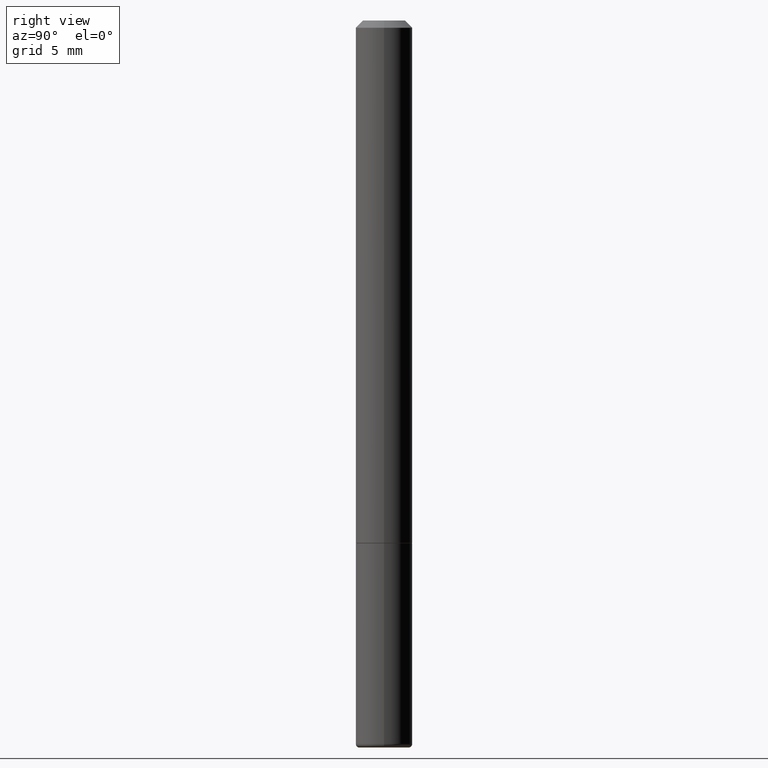
[diagram: clean part render]
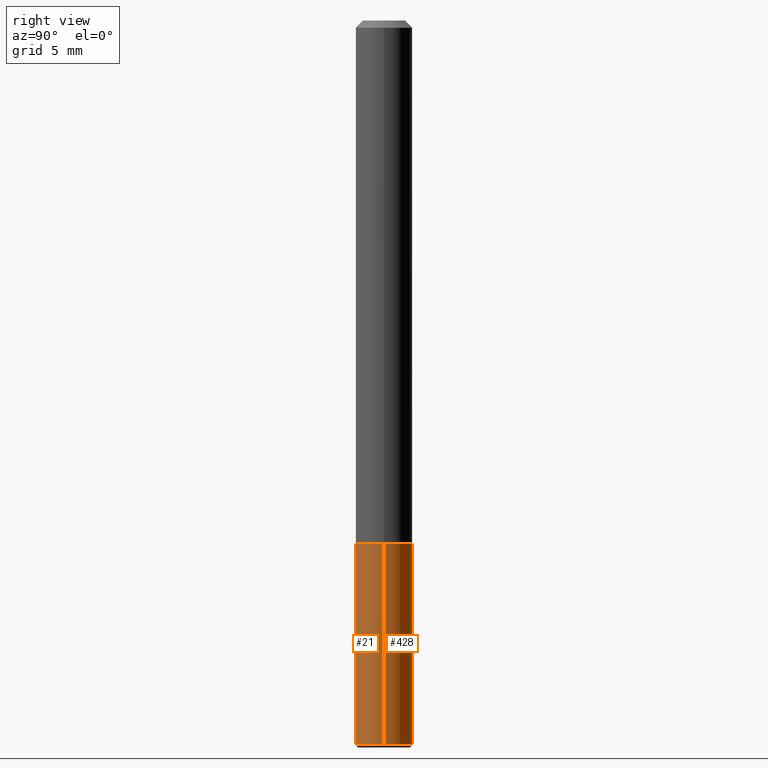
[diagram: same view with one multi-face feature highlighted, each face labeled with its STEP entity id]
A machine part, right view. The highlighted faces form ONE feature: a constant-radius fillet chain: 2 tangent blend faces with common blend radius 1.9837 mm. The faces share edges in the B-rep.
Their STEP definitions:
[1] entity #428 (Cylinder):
#4 = CARTESIAN_POINT ( 'NONE',  ( 4.866482924308422769E-29, -6.948047864297861094E-15, -1.990000000000000435 ) ) ;
#12 = ORIENTED_EDGE ( 'NONE', *, *, #276, .F. ) ;
#15 = VERTEX_POINT ( 'NONE', #104 ) ;
#31 = VECTOR ( 'NONE', #344, 39.37007874015748143 ) ;
#32 = FACE_OUTER_BOUND ( 'NONE', #384, .T. ) ;
#67 = AXIS2_PLACEMENT_3D ( 'NONE', #4, #68, #208 ) ;
#68 = DIRECTION ( 'NONE',  ( -2.445468806185136597E-29, 3.491481338843145583E-15, 1.000000000000000000 ) ) ;
#72 = DIRECTION ( 'NONE',  ( -2.445468806185136877E-29, 3.491481338843145188E-15, 1.000000000000000000 ) ) ;
#87 = CARTESIAN_POINT ( 'NONE',  ( -0.07810000000000000275, -5.429465138148513811E-15, -1.437999999999999723 ) ) ;
#102 = VERTEX_POINT ( 'NONE', #87 ) ;
#104 = CARTESIAN_POINT ( 'NONE',  ( 0.07810000000000000275, -5.566119550383739704E-15, -1.437999999999999723 ) ) ;
#107 = CARTESIAN_POINT ( 'NONE',  ( -0.07810000000000004439, 5.549338766286385606E-16, -3.841688305489084077E-30 ) ) ;
#113 = EDGE_CURVE ( 'NONE', #15, #102, #146, .T. ) ;
#116 = AXIS2_PLACEMENT_3D ( 'NONE', #197, #395, #263 ) ;
#128 = CARTESIAN_POINT ( 'NONE',  ( -0.07810000000000009990, -6.393113987669221646E-15, -1.990000000000000435 ) ) ;
#146 = CIRCLE ( 'NONE', #184, 0.07810000000000000275 ) ;
#148 = VERTEX_POINT ( 'NONE', #128 ) ;
#150 = ORIENTED_EDGE ( 'NONE', *, *, #113, .F. ) ;
#166 = CYLINDRICAL_SURFACE ( 'NONE', #116, 0.07810000000000004439 ) ;
#184 = AXIS2_PLACEMENT_3D ( 'NONE', #322, #187, #323 ) ;
#187 = DIRECTION ( 'NONE',  ( -2.445468806185136597E-29, 3.491481338843145583E-15, 1.000000000000000000 ) ) ;
#197 = CARTESIAN_POINT ( 'NONE',  ( 0.000000000000000000, 0.000000000000000000, 0.000000000000000000 ) ) ;
#206 = LINE ( 'NONE', #107, #31 ) ;
#208 = DIRECTION ( 'NONE',  ( 1.000000000000000000, -6.982962677686270655E-15, 0.000000000000000000 ) ) ;
#249 = VECTOR ( 'NONE', #72, 39.37007874015748143 ) ;
#250 = EDGE_CURVE ( 'NONE', #325, #148, #388, .T. ) ;
#251 = EDGE_CURVE ( 'NONE', #148, #102, #206, .T. ) ;
#263 = DIRECTION ( 'NONE',  ( 1.000000000000000000, -6.982962677686266711E-15, 4.876176775795936353E-29 ) ) ;
#276 = EDGE_CURVE ( 'NONE', #325, #15, #369, .T. ) ;
#300 = CARTESIAN_POINT ( 'NONE',  ( 0.07810000000000004439, -5.453693851272977322E-16, 3.808294061896628505E-30 ) ) ;
#322 = CARTESIAN_POINT ( 'NONE',  ( 3.516584143294225538E-29, -5.020750165256442268E-15, -1.437999999999999723 ) ) ;
#323 = DIRECTION ( 'NONE',  ( 1.000000000000000000, -6.982962677686266711E-15, 0.000000000000000000 ) ) ;
#325 = VERTEX_POINT ( 'NONE', #408 ) ;
#344 = DIRECTION ( 'NONE',  ( -2.445468806185136877E-29, 3.491481338843145188E-15, 1.000000000000000000 ) ) ;
#350 = ORIENTED_EDGE ( 'NONE', *, *, #251, .T. ) ;
#369 = LINE ( 'NONE', #300, #249 ) ;
#384 = EDGE_LOOP ( 'NONE', ( #420, #350, #150, #12 ) ) ;
#388 = CIRCLE ( 'NONE', #67, 0.07810000000000009990 ) ;
#395 = DIRECTION ( 'NONE',  ( -2.445468806185136597E-29, 3.491481338843145583E-15, 1.000000000000000000 ) ) ;
#408 = CARTESIAN_POINT ( 'NONE',  ( 0.07810000000000009990, -7.493417249425160108E-15, -1.990000000000000435 ) ) ;
#420 = ORIENTED_EDGE ( 'NONE', *, *, #250, .T. ) ;
#428 = ADVANCED_FACE ( 'NONE', ( #32 ), #166, .T. ) ;
[2] entity #21 (Cylinder):
#7 = DIRECTION ( 'NONE',  ( 1.000000000000000000, -6.982962677686266711E-15, 0.000000000000000000 ) ) ;
#15 = VERTEX_POINT ( 'NONE', #104 ) ;
#21 = ADVANCED_FACE ( 'NONE', ( #406 ), #235, .T. ) ;
#27 = ORIENTED_EDGE ( 'NONE', *, *, #442, .T. ) ;
#31 = VECTOR ( 'NONE', #344, 39.37007874015748143 ) ;
#37 = CARTESIAN_POINT ( 'NONE',  ( 0.000000000000000000, 0.000000000000000000, 0.000000000000000000 ) ) ;
#43 = ORIENTED_EDGE ( 'NONE', *, *, #276, .T. ) ;
#63 = CARTESIAN_POINT ( 'NONE',  ( 4.866482924308422769E-29, -6.948047864297861094E-15, -1.990000000000000435 ) ) ;
#72 = DIRECTION ( 'NONE',  ( -2.445468806185136877E-29, 3.491481338843145188E-15, 1.000000000000000000 ) ) ;
#77 = DIRECTION ( 'NONE',  ( -2.445468806185136597E-29, 3.491481338843145583E-15, 1.000000000000000000 ) ) ;
#79 = EDGE_CURVE ( 'NONE', #102, #15, #267, .T. ) ;
#87 = CARTESIAN_POINT ( 'NONE',  ( -0.07810000000000000275, -5.429465138148513811E-15, -1.437999999999999723 ) ) ;
#102 = VERTEX_POINT ( 'NONE', #87 ) ;
#104 = CARTESIAN_POINT ( 'NONE',  ( 0.07810000000000000275, -5.566119550383739704E-15, -1.437999999999999723 ) ) ;
#107 = CARTESIAN_POINT ( 'NONE',  ( -0.07810000000000004439, 5.549338766286385606E-16, -3.841688305489084077E-30 ) ) ;
#128 = CARTESIAN_POINT ( 'NONE',  ( -0.07810000000000009990, -6.393113987669221646E-15, -1.990000000000000435 ) ) ;
#148 = VERTEX_POINT ( 'NONE', #128 ) ;
#206 = LINE ( 'NONE', #107, #31 ) ;
#235 = CYLINDRICAL_SURFACE ( 'NONE', #238, 0.07810000000000004439 ) ;
#238 = AXIS2_PLACEMENT_3D ( 'NONE', #37, #296, #264 ) ;
#249 = VECTOR ( 'NONE', #72, 39.37007874015748143 ) ;
#251 = EDGE_CURVE ( 'NONE', #148, #102, #206, .T. ) ;
#257 = ORIENTED_EDGE ( 'NONE', *, *, #251, .F. ) ;
#264 = DIRECTION ( 'NONE',  ( 1.000000000000000000, -6.982962677686266711E-15, 4.876176775795936353E-29 ) ) ;
#267 = CIRCLE ( 'NONE', #409, 0.07810000000000000275 ) ;
#276 = EDGE_CURVE ( 'NONE', #325, #15, #369, .T. ) ;
#283 = ORIENTED_EDGE ( 'NONE', *, *, #79, .F. ) ;
#291 = AXIS2_PLACEMENT_3D ( 'NONE', #63, #333, #440 ) ;
#296 = DIRECTION ( 'NONE',  ( -2.445468806185136597E-29, 3.491481338843145583E-15, 1.000000000000000000 ) ) ;
#300 = CARTESIAN_POINT ( 'NONE',  ( 0.07810000000000004439, -5.453693851272977322E-16, 3.808294061896628505E-30 ) ) ;
#316 = CIRCLE ( 'NONE', #291, 0.07810000000000009990 ) ;
#317 = EDGE_LOOP ( 'NONE', ( #257, #27, #43, #283 ) ) ;
#325 = VERTEX_POINT ( 'NONE', #408 ) ;
#333 = DIRECTION ( 'NONE',  ( -2.445468806185136597E-29, 3.491481338843145583E-15, 1.000000000000000000 ) ) ;
#344 = DIRECTION ( 'NONE',  ( -2.445468806185136877E-29, 3.491481338843145188E-15, 1.000000000000000000 ) ) ;
#369 = LINE ( 'NONE', #300, #249 ) ;
#375 = CARTESIAN_POINT ( 'NONE',  ( 3.516584143294225538E-29, -5.020750165256442268E-15, -1.437999999999999723 ) ) ;
#406 = FACE_OUTER_BOUND ( 'NONE', #317, .T. ) ;
#408 = CARTESIAN_POINT ( 'NONE',  ( 0.07810000000000009990, -7.493417249425160108E-15, -1.990000000000000435 ) ) ;
#409 = AXIS2_PLACEMENT_3D ( 'NONE', #375, #77, #7 ) ;
#440 = DIRECTION ( 'NONE',  ( 1.000000000000000000, -6.982962677686270655E-15, 0.000000000000000000 ) ) ;
#442 = EDGE_CURVE ( 'NONE', #148, #325, #316, .T. ) ;